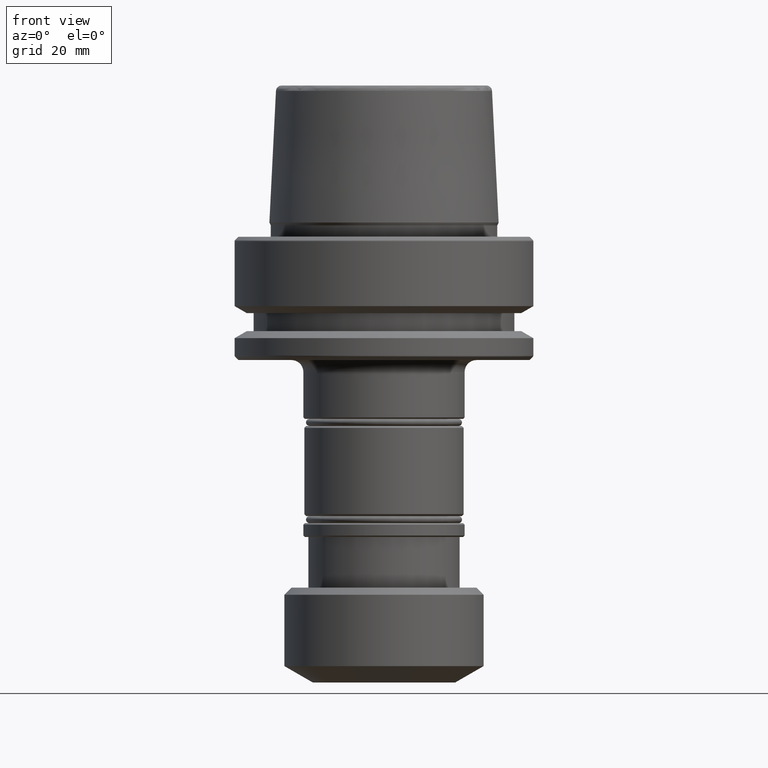
[diagram: clean part render]
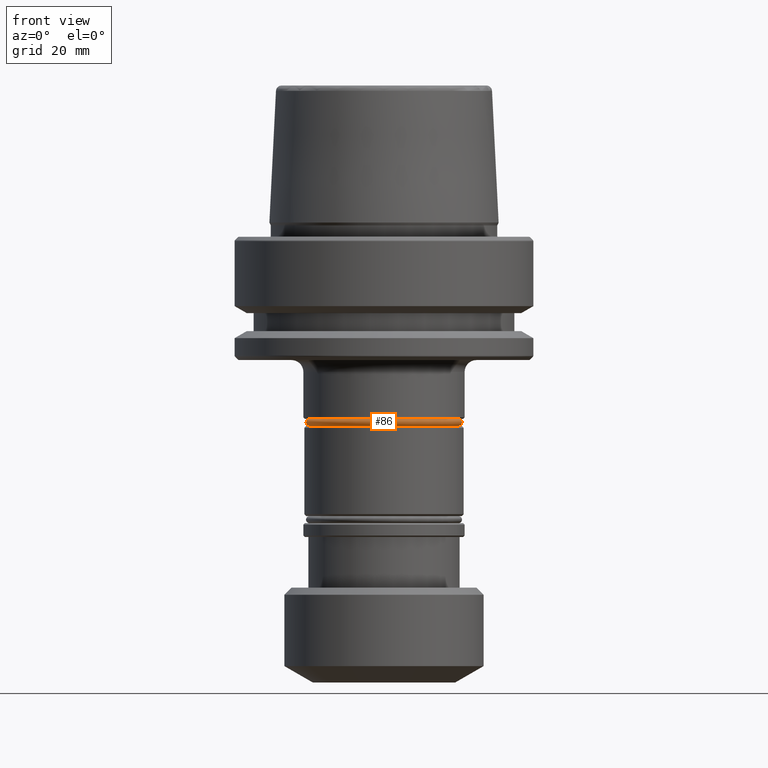
[diagram: same view with one face highlighted and labeled with its STEP entity id]
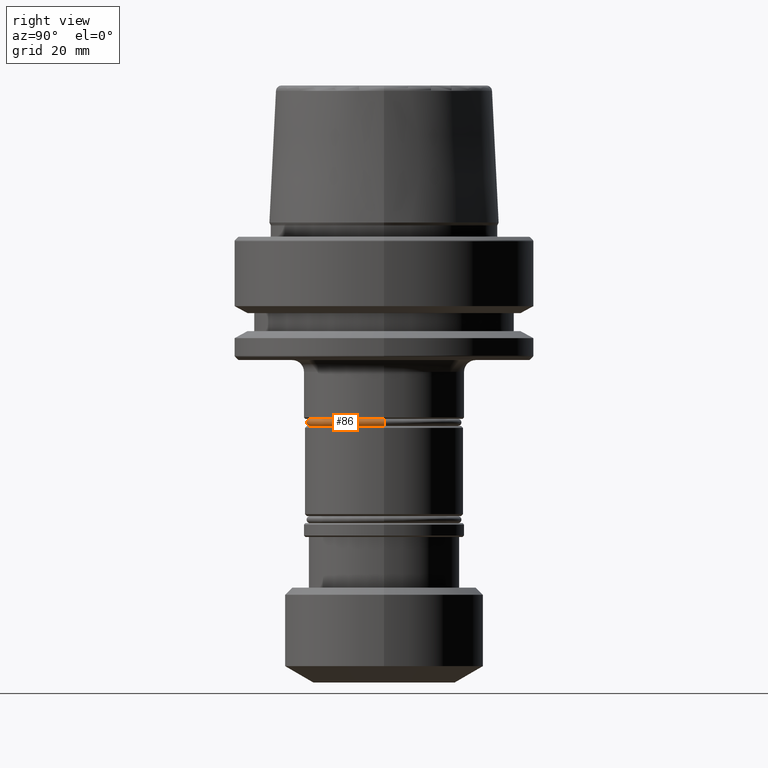
[diagram: same view with one face highlighted and labeled with its STEP entity id]
A machine part, front view. The second image highlights one B-rep face of the part: STEP entity #86.
A second angle (right view) of the same face is appended — the face is thin or edge-on in the first view.
In plain terms, the highlighted toroidal blend (fillet) surface has major radius 15.7 mm and minor (blend) radius 0.75 mm.
Its self-contained STEP definition (entity closure, byte-faithful):
#7 = DIRECTION ( 'NONE',  ( 0.0000000000000000000, -1.000000000000000000, 0.0000000000000000000 ) ) ;
#28 = EDGE_CURVE ( 'NONE', #431, #1645, #1734, .T. ) ;
#66 = EDGE_CURVE ( 'NONE', #1645, #991, #1315, .T. ) ;
#86 = ADVANCED_FACE ( 'NONE', ( #814 ), #1212, .T. ) ;
#132 = CARTESIAN_POINT ( 'NONE',  ( -15.70000000000005100, 1.922695474661350600E-015, -39.14999999999871200 ) ) ;
#144 = DIRECTION ( 'NONE',  ( -0.0000000000000000000, -0.0000000000000000000, 1.000000000000000000 ) ) ;
#152 = DIRECTION ( 'NONE',  ( 1.000000000000000000, 0.0000000000000000000, 0.0000000000000000000 ) ) ;
#202 = CIRCLE ( 'NONE', #1010, 0.7499999999993622900 ) ;
#277 = ORIENTED_EDGE ( 'NONE', *, *, #759, .T. ) ;
#431 = VERTEX_POINT ( 'NONE', #1301 ) ;
#454 = DIRECTION ( 'NONE',  ( 1.000000000000000000, 0.0000000000000000000, 0.0000000000000000000 ) ) ;
#472 = CARTESIAN_POINT ( 'NONE',  ( 0.0000000000000000000, 0.0000000000000000000, -38.39999999999935200 ) ) ;
#637 = CARTESIAN_POINT ( 'NONE',  ( 0.0000000000000000000, 0.0000000000000000000, -39.14999999999871200 ) ) ;
#663 = EDGE_LOOP ( 'NONE', ( #1023, #277, #1757, #1534 ) ) ;
#745 = EDGE_CURVE ( 'NONE', #1703, #991, #202, .T. ) ;
#759 = EDGE_CURVE ( 'NONE', #431, #1703, #1310, .T. ) ;
#814 = FACE_OUTER_BOUND ( 'NONE', #663, .T. ) ;
#991 = VERTEX_POINT ( 'NONE', #1972 ) ;
#1010 = AXIS2_PLACEMENT_3D ( 'NONE', #1376, #7, #1737 ) ;
#1023 = ORIENTED_EDGE ( 'NONE', *, *, #28, .F. ) ;
#1042 = DIRECTION ( 'NONE',  ( -0.0000000000000000000, -0.0000000000000000000, 1.000000000000000000 ) ) ;
#1073 = AXIS2_PLACEMENT_3D ( 'NONE', #132, #1197, #1425 ) ;
#1097 = DIRECTION ( 'NONE',  ( -0.0000000000000000000, -0.0000000000000000000, 1.000000000000000000 ) ) ;
#1102 = CARTESIAN_POINT ( 'NONE',  ( 0.0000000000000000000, 0.0000000000000000000, -39.89999999999807300 ) ) ;
#1197 = DIRECTION ( 'NONE',  ( 1.224646799147353200E-016, 1.000000000000000000, 0.0000000000000000000 ) ) ;
#1206 = CARTESIAN_POINT ( 'NONE',  ( -15.70000000000005100, 1.922695474661350600E-015, -38.39999999999935200 ) ) ;
#1212 = TOROIDAL_SURFACE ( 'NONE', #1814, 15.70000000000005100, 0.7499999999993622900 ) ;
#1219 = AXIS2_PLACEMENT_3D ( 'NONE', #1102, #1097, #152 ) ;
#1301 = CARTESIAN_POINT ( 'NONE',  ( -15.70000000000005100, 1.922695474661350600E-015, -39.89999999999807300 ) ) ;
#1310 = CIRCLE ( 'NONE', #1219, 15.70000000000005100 ) ;
#1315 = CIRCLE ( 'NONE', #1389, 15.70000000000005100 ) ;
#1376 = CARTESIAN_POINT ( 'NONE',  ( 15.70000000000005100, 0.0000000000000000000, -39.14999999999871200 ) ) ;
#1389 = AXIS2_PLACEMENT_3D ( 'NONE', #472, #144, #454 ) ;
#1425 = DIRECTION ( 'NONE',  ( -1.000000000000000000, 1.224646799147354400E-016, 0.0000000000000000000 ) ) ;
#1534 = ORIENTED_EDGE ( 'NONE', *, *, #66, .F. ) ;
#1550 = CARTESIAN_POINT ( 'NONE',  ( 15.70000000000005100, 0.0000000000000000000, -39.89999999999807300 ) ) ;
#1645 = VERTEX_POINT ( 'NONE', #1206 ) ;
#1703 = VERTEX_POINT ( 'NONE', #1550 ) ;
#1734 = CIRCLE ( 'NONE', #1073, 0.7499999999993622900 ) ;
#1737 = DIRECTION ( 'NONE',  ( 0.0000000000000000000, 0.0000000000000000000, -1.000000000000000000 ) ) ;
#1757 = ORIENTED_EDGE ( 'NONE', *, *, #745, .T. ) ;
#1814 = AXIS2_PLACEMENT_3D ( 'NONE', #637, #1042, #1886 ) ;
#1886 = DIRECTION ( 'NONE',  ( 1.000000000000000000, 0.0000000000000000000, 0.0000000000000000000 ) ) ;
#1972 = CARTESIAN_POINT ( 'NONE',  ( 15.70000000000005100, 0.0000000000000000000, -38.39999999999935200 ) ) ;